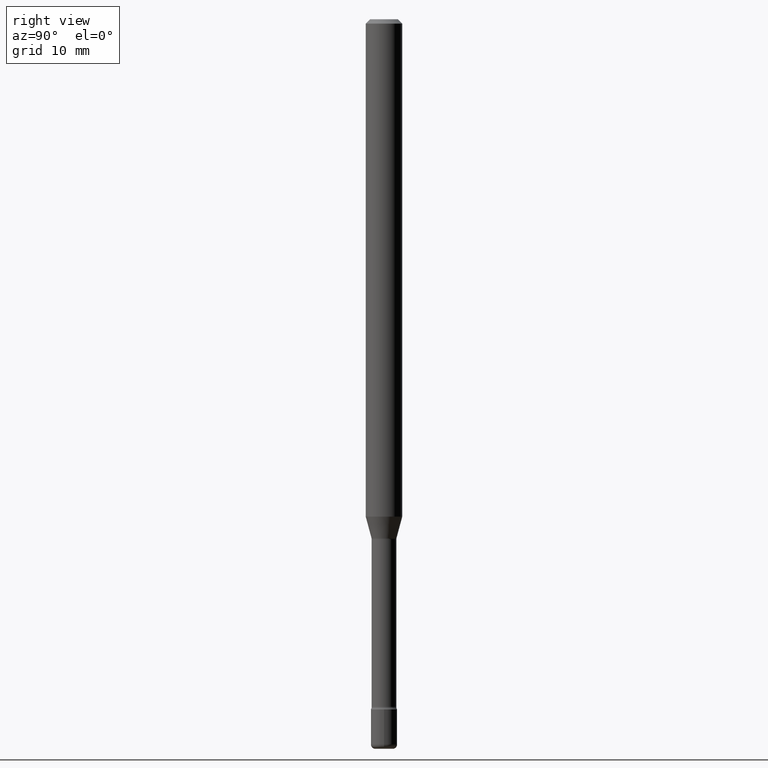
[diagram: clean part render]
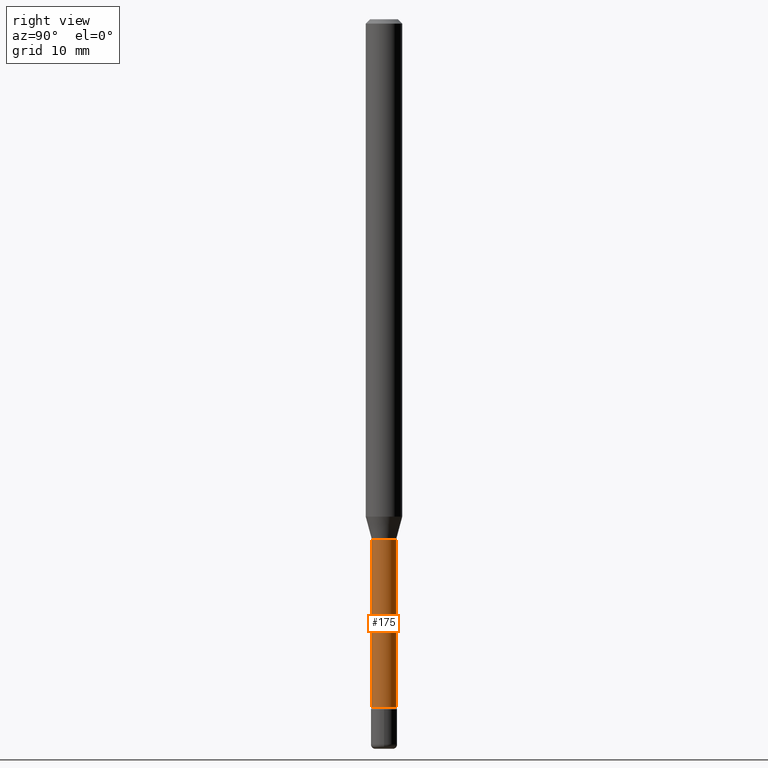
[diagram: same view with one face highlighted and labeled with its STEP entity id]
A machine part, right view. The second image highlights one B-rep face of the part: STEP entity #175.
In plain terms, the highlighted cylindrical surface (edge-blend (fillet) strip) has radius 1.0744 mm, axis along (-0, 0, 1).
Its self-contained STEP definition (entity closure, byte-faithful):
#35 = ORIENTED_EDGE ( 'NONE', *, *, #144, .F. ) ;
#61 = DIRECTION ( 'NONE',  ( -2.445411864812793917E-29, 3.491562882129241838E-15, 1.000000000000000000 ) ) ;
#63 = CARTESIAN_POINT ( 'NONE',  ( -1.169113584055446105E-44, 1.669184350826100908E-30, 4.780733988912460139E-16 ) ) ;
#77 = VERTEX_POINT ( 'NONE', #308 ) ;
#112 = DIRECTION ( 'NONE',  ( -6.982962677686266711E-15, -1.000000000000000000, 6.458269488567998169E-15 ) ) ;
#113 = DIRECTION ( 'NONE',  ( -2.445411864812793917E-29, 3.491562882129241838E-15, 1.000000000000000000 ) ) ;
#135 = ORIENTED_EDGE ( 'NONE', *, *, #511, .T. ) ;
#144 = EDGE_CURVE ( 'NONE', #259, #473, #333, .T. ) ;
#175 = ADVANCED_FACE ( 'NONE', ( #543 ), #414, .T. ) ;
#202 = CARTESIAN_POINT ( 'NONE',  ( -2.953793212660856168E-16, -0.04230000000000624233, -1.781974787463810994 ) ) ;
#207 = VECTOR ( 'NONE', #61, 39.37007874015748143 ) ;
#241 = ORIENTED_EDGE ( 'NONE', *, *, #569, .T. ) ;
#243 = DIRECTION ( 'NONE',  ( -2.445411864812793917E-29, 3.491562882129241838E-15, 1.000000000000000000 ) ) ;
#246 = CARTESIAN_POINT ( 'NONE',  ( 4.357662288061261093E-29, -6.221877024798788192E-15, -1.781974787463811216 ) ) ;
#247 = DIRECTION ( 'NONE',  ( -2.445411864812793917E-29, 3.491562882129241838E-15, 1.000000000000000000 ) ) ;
#259 = VERTEX_POINT ( 'NONE', #539 ) ;
#266 = CARTESIAN_POINT ( 'NONE',  ( 3.005595772265223596E-16, 0.04230000000000001120, 3.303802889771791252E-16 ) ) ;
#272 = CARTESIAN_POINT ( 'NONE',  ( 5.762404092109162712E-29, -8.227569567868378496E-15, -2.356414547187247521 ) ) ;
#282 = EDGE_CURVE ( 'NONE', #473, #561, #532, .T. ) ;
#308 = CARTESIAN_POINT ( 'NONE',  ( 3.101519041593414751E-16, 0.04229999999999176780, -2.356414547187247965 ) ) ;
#325 = AXIS2_PLACEMENT_3D ( 'NONE', #63, #247, #374 ) ;
#333 = LINE ( 'NONE', #458, #207 ) ;
#371 = CIRCLE ( 'NONE', #489, 0.04229999999999999732 ) ;
#373 = ORIENTED_EDGE ( 'NONE', *, *, #282, .F. ) ;
#374 = DIRECTION ( 'NONE',  ( -6.982962677686265133E-15, -1.000000000000000000, 3.491562882129239866E-15 ) ) ;
#397 = VECTOR ( 'NONE', #401, 39.37007874015748143 ) ;
#399 = AXIS2_PLACEMENT_3D ( 'NONE', #246, #113, #462 ) ;
#401 = DIRECTION ( 'NONE',  ( -2.445411864812793917E-29, 3.491562882129241838E-15, 1.000000000000000000 ) ) ;
#414 = CYLINDRICAL_SURFACE ( 'NONE', #325, 0.04230000000000001120 ) ;
#458 = CARTESIAN_POINT ( 'NONE',  ( -2.953793212661291028E-16, -0.04230000000000001120, 6.257665088053130012E-16 ) ) ;
#462 = DIRECTION ( 'NONE',  ( -6.982962677686266711E-15, -1.000000000000000000, 6.458269488567995014E-15 ) ) ;
#473 = VERTEX_POINT ( 'NONE', #202 ) ;
#476 = LINE ( 'NONE', #266, #397 ) ;
#489 = AXIS2_PLACEMENT_3D ( 'NONE', #272, #243, #112 ) ;
#506 = EDGE_LOOP ( 'NONE', ( #241, #135, #373, #35 ) ) ;
#511 = EDGE_CURVE ( 'NONE', #77, #561, #476, .T. ) ;
#532 = CIRCLE ( 'NONE', #399, 0.04230000000000001814 ) ;
#539 = CARTESIAN_POINT ( 'NONE',  ( -2.953793212660714173E-16, -0.04230000000000822685, -2.356414547187247077 ) ) ;
#543 = FACE_OUTER_BOUND ( 'NONE', #506, .T. ) ;
#560 = CARTESIAN_POINT ( 'NONE',  ( 3.005595772265801930E-16, 0.04229999999999379395, -1.781974787463811438 ) ) ;
#561 = VERTEX_POINT ( 'NONE', #560 ) ;
#569 = EDGE_CURVE ( 'NONE', #259, #77, #371, .T. ) ;